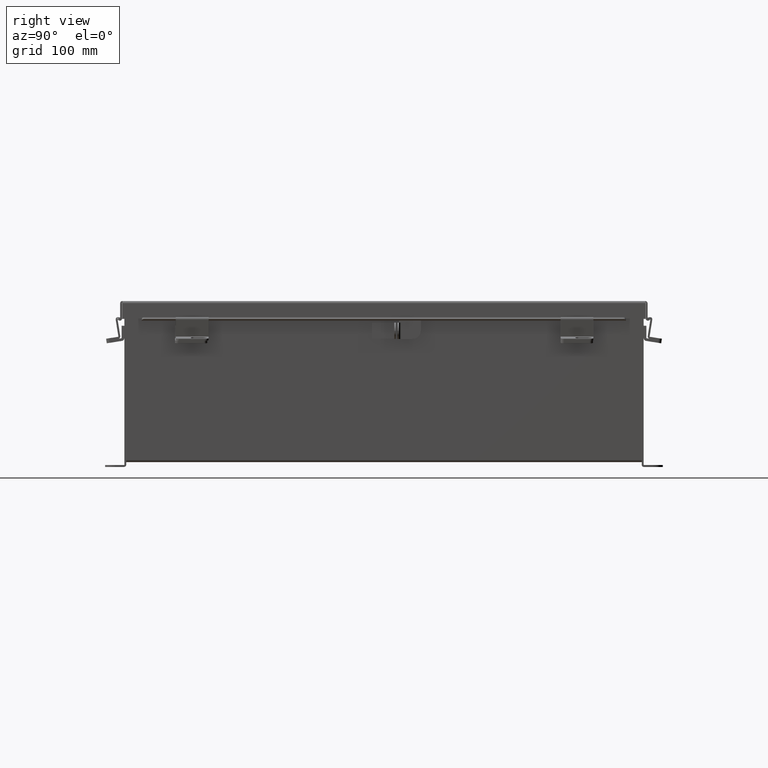
[diagram: clean part render]
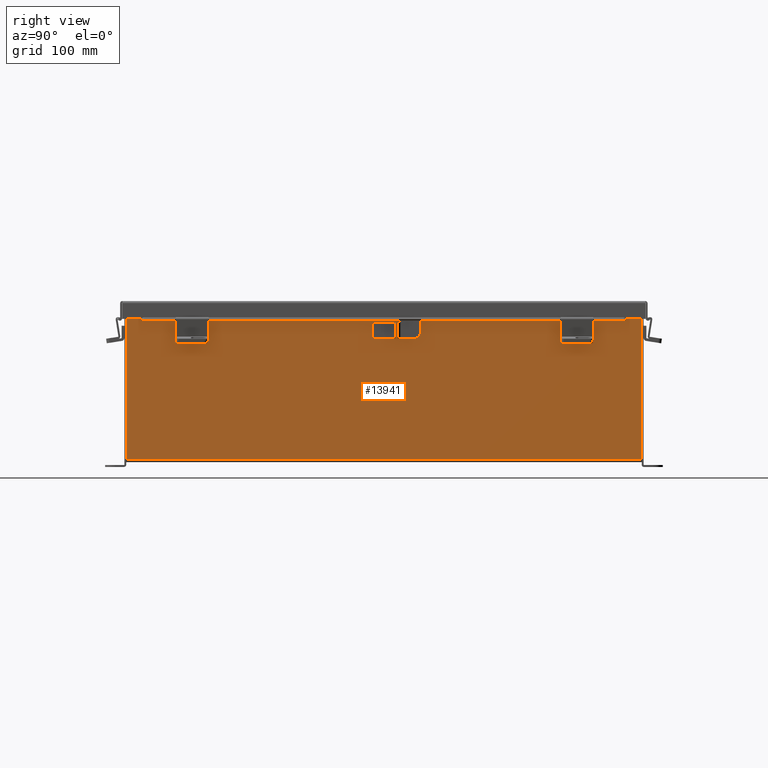
[diagram: same view with one face highlighted and labeled with its STEP entity id]
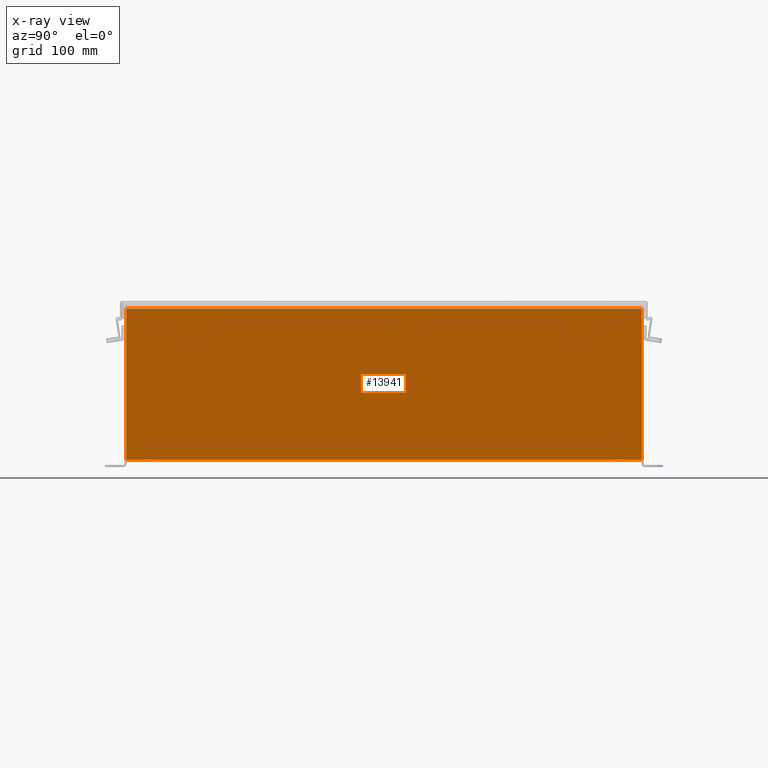
[diagram: x-ray of the same camera — body ghosted, the highlighted face saturated]
A machine part, right view. The second image highlights one B-rep face of the part: STEP entity #13941.
The next image is the same camera in x-ray: the body ghosted, the highlighted face saturated — about 0% of this face is hidden behind the body in this view.
In plain terms, the highlighted planar face has unit normal (-1, 0, 0).
Its self-contained STEP definition (entity closure, byte-faithful):
#143 = CARTESIAN_POINT ( 'NONE',  ( 8.000000000000003600, -9.925300000000000000, 0.01299999999999984300 ) ) ;
#1225 = ORIENTED_EDGE ( 'NONE', *, *, #20360, .F. ) ;
#1499 = VERTEX_POINT ( 'NONE', #6467 ) ;
#1550 = LINE ( 'NONE', #1728, #10159 ) ;
#1728 = CARTESIAN_POINT ( 'NONE',  ( 8.000000000000003600, 9.925299999999998200, -2.494518699214680400E-014 ) ) ;
#1837 = CARTESIAN_POINT ( 'NONE',  ( 8.000000000000023100, 9.925299999999996500, 5.837600000000000100 ) ) ;
#3429 = DIRECTION ( 'NONE',  ( 3.548703509357741800E-015, -3.735477378271307500E-016, 1.000000000000000000 ) ) ;
#3504 = ORIENTED_EDGE ( 'NONE', *, *, #12399, .T. ) ;
#4347 = ORIENTED_EDGE ( 'NONE', *, *, #20799, .T. ) ;
#4851 = FACE_OUTER_BOUND ( 'NONE', #18186, .T. ) ;
#5631 = LINE ( 'NONE', #1837, #8586 ) ;
#6178 = EDGE_CURVE ( 'NONE', #8316, #19324, #5631, .T. ) ;
#6467 = CARTESIAN_POINT ( 'NONE',  ( 8.000000000000003600, 9.925299999999992900, 0.01299999999999984300 ) ) ;
#6697 = CARTESIAN_POINT ( 'NONE',  ( 8.000000000000003600, 0.0000000000000000000, -2.865025583355396000E-014 ) ) ;
#8316 = VERTEX_POINT ( 'NONE', #8780 ) ;
#8438 = DIRECTION ( 'NONE',  ( 3.548703509357741000E-015, 0.0000000000000000000, 1.000000000000000000 ) ) ;
#8586 = VECTOR ( 'NONE', #10936, 39.37007874015748100 ) ;
#8780 = CARTESIAN_POINT ( 'NONE',  ( 8.000000000000023100, 9.925299999999992900, 5.837600000000000100 ) ) ;
#9081 = LINE ( 'NONE', #9232, #13147 ) ;
#9232 = CARTESIAN_POINT ( 'NONE',  ( 8.000000000000003600, -9.925300000000000000, 0.01299999999999984300 ) ) ;
#9834 = CARTESIAN_POINT ( 'NONE',  ( 8.000000000000003600, -9.925300000000000000, -2.865025583355396000E-014 ) ) ;
#10159 = VECTOR ( 'NONE', #3429, 39.37007874015748100 ) ;
#10798 = VECTOR ( 'NONE', #21975, 39.37007874015748100 ) ;
#10936 = DIRECTION ( 'NONE',  ( -0.0000000000000000000, -1.000000000000000000, -0.0000000000000000000 ) ) ;
#12274 = ORIENTED_EDGE ( 'NONE', *, *, #6178, .T. ) ;
#12399 = EDGE_CURVE ( 'NONE', #19324, #15199, #15441, .T. ) ;
#12783 = CARTESIAN_POINT ( 'NONE',  ( 8.000000000000023100, -9.925300000000000000, 5.837600000000000100 ) ) ;
#13147 = VECTOR ( 'NONE', #14483, 39.37007874015748100 ) ;
#13591 = PLANE ( 'NONE',  #20409 ) ;
#13941 = ADVANCED_FACE ( 'NONE', ( #4851 ), #13591, .F. ) ;
#14483 = DIRECTION ( 'NONE',  ( -0.0000000000000000000, -1.000000000000000000, -0.0000000000000000000 ) ) ;
#15199 = VERTEX_POINT ( 'NONE', #143 ) ;
#15441 = LINE ( 'NONE', #9834, #10798 ) ;
#18186 = EDGE_LOOP ( 'NONE', ( #12274, #3504, #1225, #4347 ) ) ;
#18848 = DIRECTION ( 'NONE',  ( -1.000000000000000000, 0.0000000000000000000, 3.548703509357741000E-015 ) ) ;
#19324 = VERTEX_POINT ( 'NONE', #12783 ) ;
#20360 = EDGE_CURVE ( 'NONE', #1499, #15199, #9081, .T. ) ;
#20409 = AXIS2_PLACEMENT_3D ( 'NONE', #6697, #18848, #8438 ) ;
#20799 = EDGE_CURVE ( 'NONE', #1499, #8316, #1550, .T. ) ;
#21975 = DIRECTION ( 'NONE',  ( -3.548703509357741800E-015, 0.0000000000000000000, -1.000000000000000000 ) ) ;